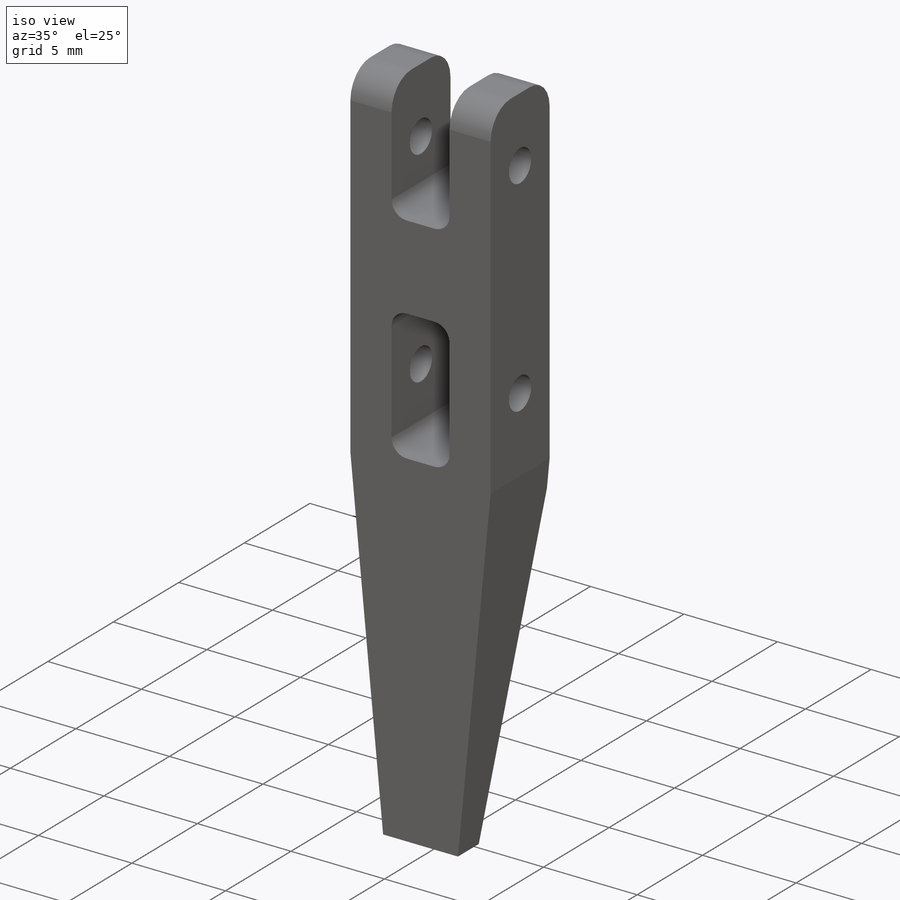
[diagram: iso view]
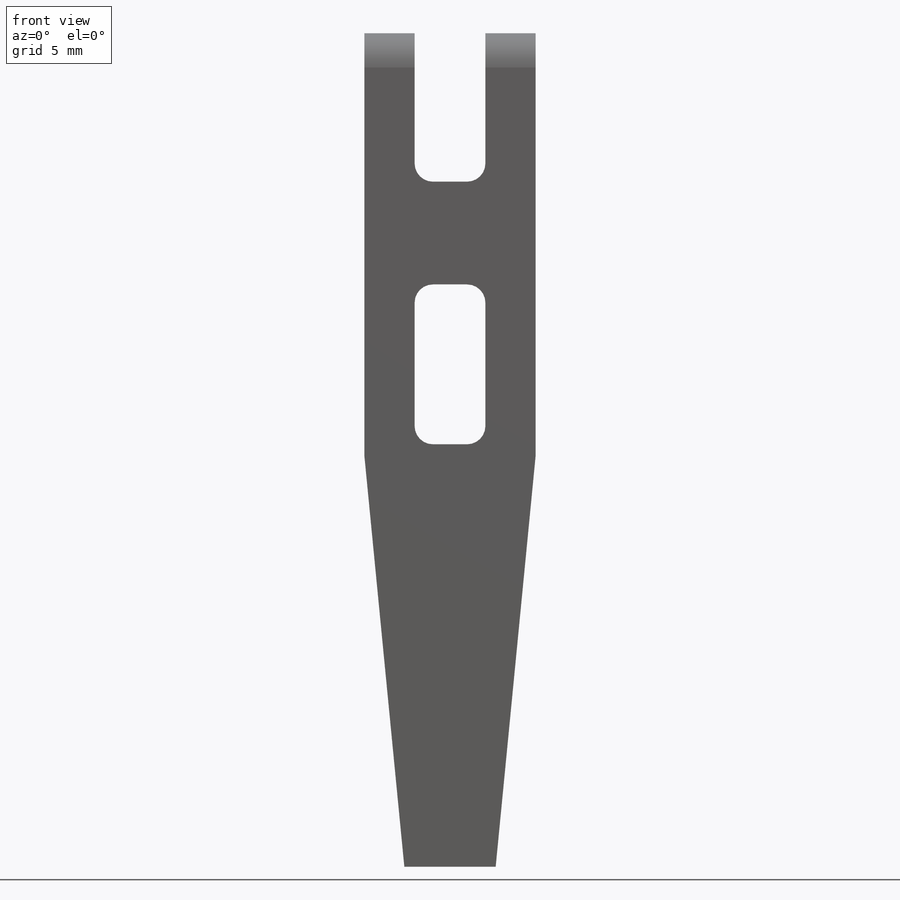
[diagram: front view]
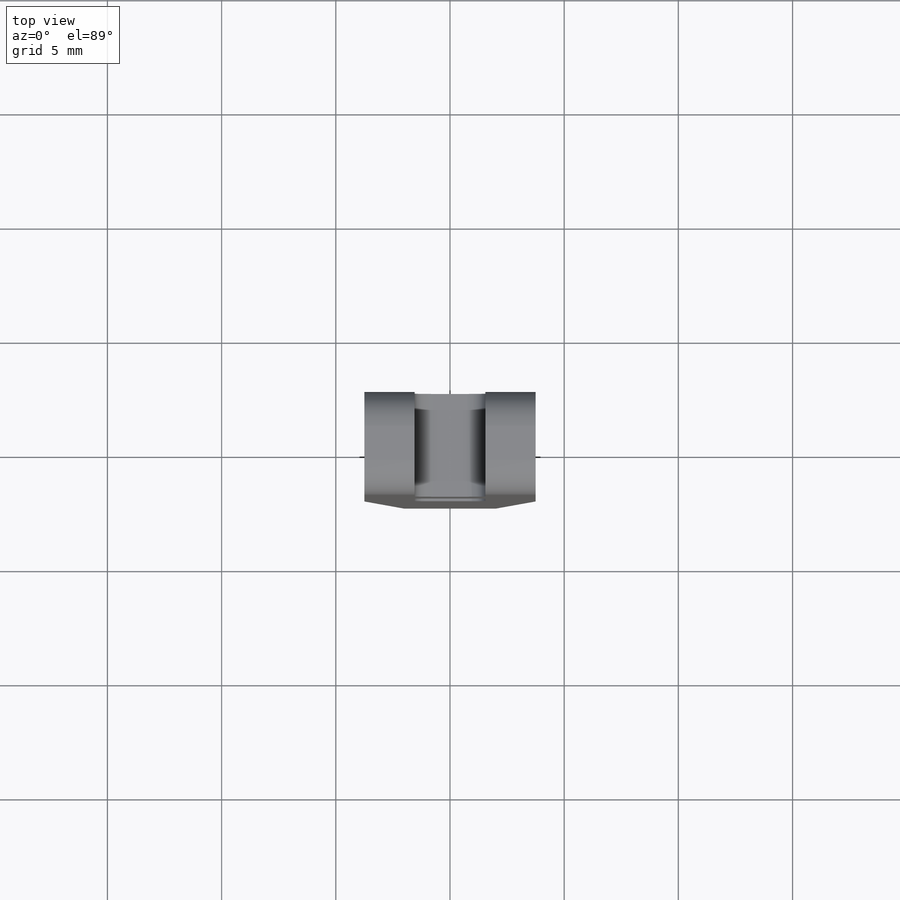
[diagram: top view]
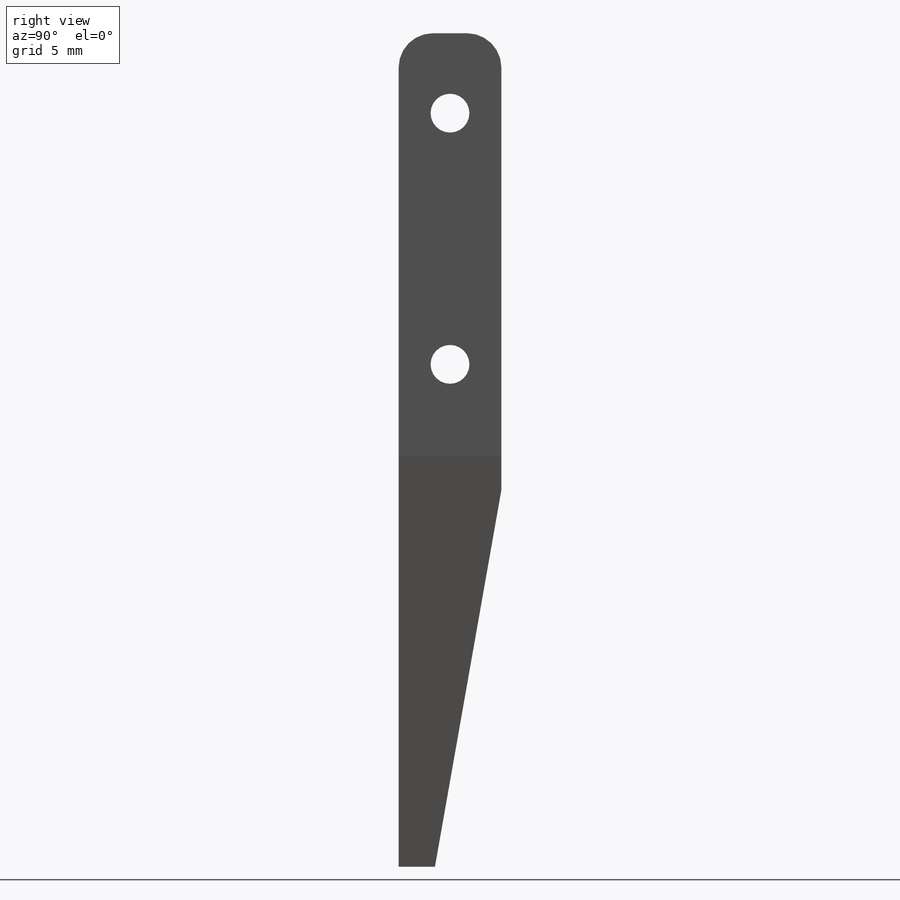
[diagram: right view]
SOLIDWORKS PART (.sldprt)
format: sldprt  version: not decoded by parser v0  size: 250,368 bytes
history: native  units: mm
features: plane x3, sketch x3, cut_extrude x2, fillet x2, material x1, extrude x1 (+10 scaffold rows collapsed)
feature tree (22):
  scaffold x10  (default folders/planes/origin — collapsed)
  material  "材质 <未指定>"
  plane  "前视基准面"
  plane  "上视基准面"
  plane  "右视基准面"
  sketch  "草图1"  dims[c1.D1=1.7mm c1.D2=11.0mm c1.D3=~7.815004mm c2.D3=100.0deg c2.D4=3.5mm c2.D5=4.5mm c2.D6=20.0mm c2.D7=22.0mm]
  extrude  "凸台-拉伸1"  Depth=7.5mm
  sketch  "草图2"  dims[D1=7.0mm D2=3.1mm D3=3.0mm]
  cut_extrude  "切除-拉伸1"  [1 undecoded]
  fillet  "圆角1"  Radius=1.5mm
  fillet  "圆角2"  Radius=0.8mm
  sketch  "草图3"  dims[D1=18.0mm D2=4.0mm]
  cut_extrude  "切除-拉伸2"  [1 undecoded]
decode coverage: 6 of 8 modeling features carry decoded parameters
note: ~ marks probable driven/reference dimensions
note: 2 parameter values undecoded
note: suppression state not decoded; provenance and decode notes live in map.json
